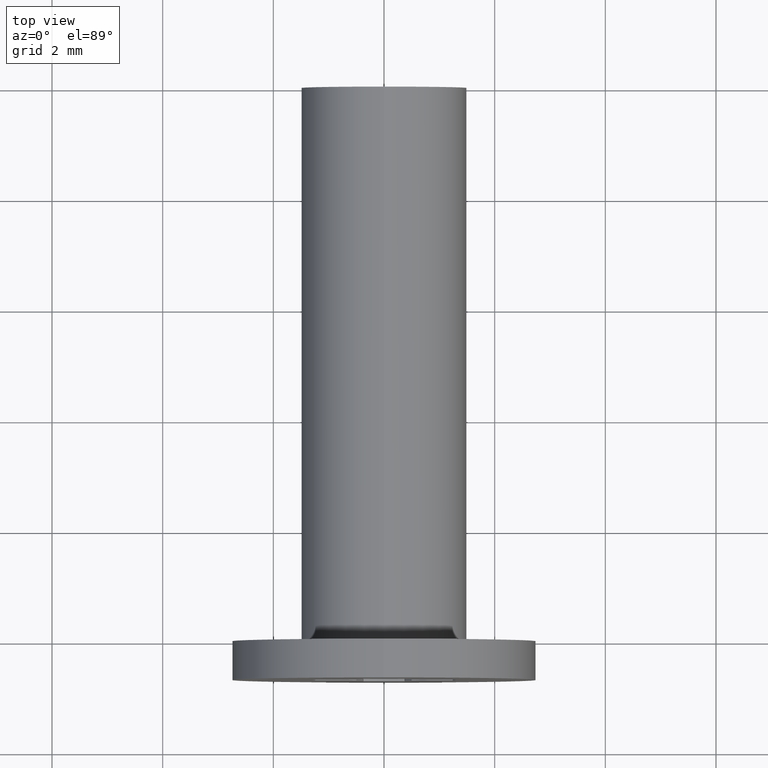
[diagram: clean part render]
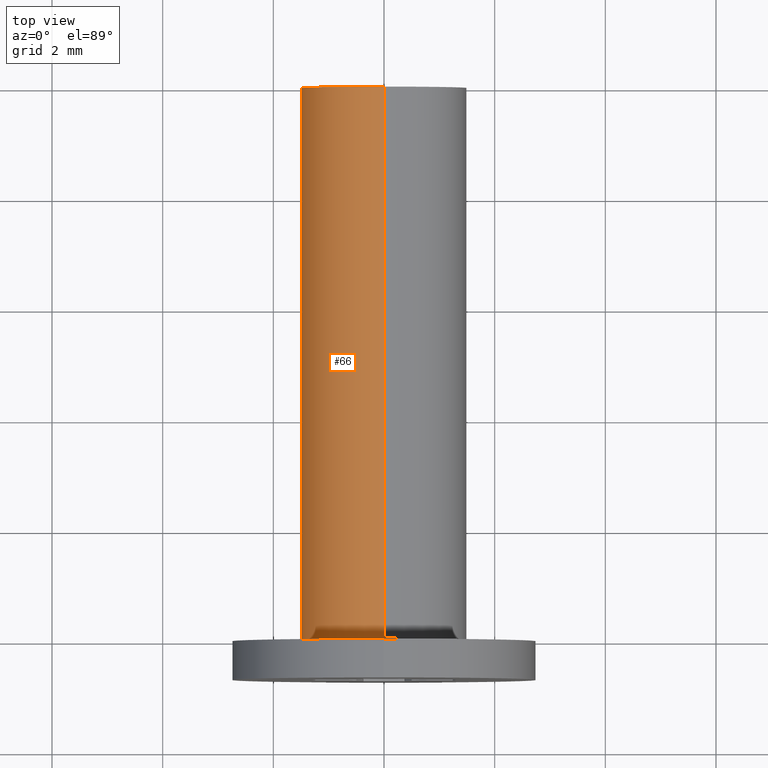
[diagram: same view with one face highlighted and labeled with its STEP entity id]
A machine part, top view. The second image highlights one B-rep face of the part: STEP entity #66.
In plain terms, the highlighted cylindrical surface (partial cylindrical patch) has radius 1.5 mm, axis along (-0, 1, -0).
Its self-contained STEP definition (entity closure, byte-faithful):
#66=ADVANCED_FACE('',(#332),#331,.T.);
#331=CYLINDRICAL_SURFACE('',#516,1.50000000000E+00);
#332=FACE_OUTER_BOUND('',#517,.T.);
#513=CARTESIAN_POINT('',(0.00000000000E+00,0.00000000000E+00,0.00000000000E+00));
#514=DIRECTION('',(-0.00000000000E+00,1.00000000000E+00,-0.00000000000E+00));
#515=DIRECTION('',(-0.00000000000E+00,-0.00000000000E+00,1.00000000000E+00));
#516=AXIS2_PLACEMENT_3D('',#513,#514,#515);
#517=EDGE_LOOP('',(#652,#653,#654,#655));
#652=ORIENTED_EDGE('',*,*,#723,.F.);
#653=ORIENTED_EDGE('',*,*,#728,.T.);
#654=ORIENTED_EDGE('',*,*,#667,.T.);
#655=ORIENTED_EDGE('',*,*,#729,.F.);
#667=EDGE_CURVE('',#753,#754,#755,.T.);
#723=EDGE_CURVE('',#1119,#1118,#1126,.T.);
#728=EDGE_CURVE('',#1119,#753,#1159,.T.);
#729=EDGE_CURVE('',#1118,#754,#1165,.T.);
#753=VERTEX_POINT('',#1196);
#754=VERTEX_POINT('',#1197);
#755=CIRCLE('',#1201,1.50000000000E+00);
#1118=VERTEX_POINT('',#1425);
#1119=VERTEX_POINT('',#1426);
#1126=CIRCLE('',#1434,1.50000000000E+00);
#1159=(BOUNDED_CURVE() B_SPLINE_CURVE(1,(#1450,#1451),.UNSPECIFIED.,.F.,.F.) B_SPLINE_CURVE_WITH_KNOTS((2,2),(8.33333343261E-02,9.16666667006E-01),.UNSPECIFIED.) CURVE() GEOMETRIC_REPRESENTATION_ITEM() RATIONAL_B_SPLINE_CURVE((1.00000000000E+00,1.00000000000E+00)) REPRESENTATION_ITEM('') );
#1165=(BOUNDED_CURVE() B_SPLINE_CURVE(1,(#1452,#1453),.UNSPECIFIED.,.F.,.F.) B_SPLINE_CURVE_WITH_KNOTS((2,2),(8.33333333333E-02,9.16666666667E-01),.UNSPECIFIED.) CURVE() GEOMETRIC_REPRESENTATION_ITEM() RATIONAL_B_SPLINE_CURVE((7.50000000000E-01,7.50000000000E-01)) REPRESENTATION_ITEM('') );
#1196=CARTESIAN_POINT('',(-7.40148683083E-17,1.00000000000E+01,1.50000000000E+00));
#1197=CARTESIAN_POINT('',(0.00000000000E+00,1.00000000000E+01,-1.50000000000E+00));
#1198=CARTESIAN_POINT('',(0.00000000000E+00,1.00000000000E+01,0.00000000000E+00));
#1199=DIRECTION('',(0.00000000000E+00,-1.00000000000E+00,-0.00000000000E+00));
#1200=DIRECTION('',(-1.22460635382E-16,0.00000000000E+00,-1.00000000000E+00));
#1201=AXIS2_PLACEMENT_3D('',#1198,#1199,#1200);
#1425=CARTESIAN_POINT('',(0.00000000000E+00,8.88178419700E-15,-1.50000000000E+00));
#1426=CARTESIAN_POINT('',(-7.40148683083E-17,8.88178419700E-15,1.50000000000E+00));
#1431=CARTESIAN_POINT('',(0.00000000000E+00,8.88178419700E-15,0.00000000000E+00));
#1432=DIRECTION('',(0.00000000000E+00,-1.00000000000E+00,-0.00000000000E+00));
#1433=DIRECTION('',(-1.22460635382E-16,0.00000000000E+00,-1.00000000000E+00));
#1434=AXIS2_PLACEMENT_3D('',#1431,#1432,#1433);
#1450=CARTESIAN_POINT('',(0.00000000000E+00,1.19129374143E-08,1.50000000000E+00));
#1451=CARTESIAN_POINT('',(0.00000000000E+00,1.00000000041E+01,1.50000000000E+00));
#1452=CARTESIAN_POINT('',(0.00000000000E+00,8.88178419700E-15,-1.50000000000E+00));
#1453=CARTESIAN_POINT('',(0.00000000000E+00,1.00000000000E+01,-1.50000000000E+00));